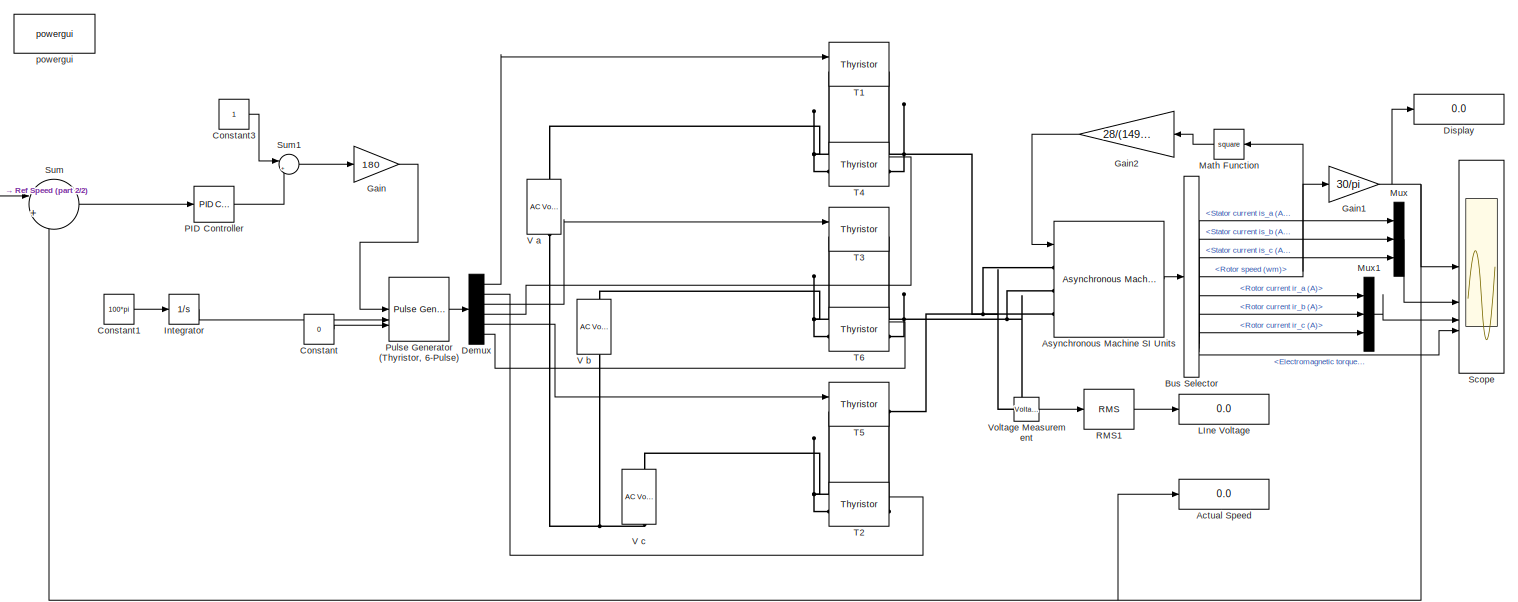
[diagram: root canvas - part 1/2, most of the canvas]
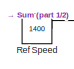
[diagram: root canvas - part 2/2, middle left region]
MODEL slx_1ed2d257d4fe
KIND model
CONFIG AbsTol = auto
CONFIG EnableMultiTasking = off
CONFIG FixedStep = auto
CONFIG MaxStep = 1e-4
CONFIG MinStep = auto
CONFIG RelTol = 1e-3
CONFIG SampleTimeConstraint = Unconstrained
CONFIG SolverName = ode23tb
CONFIG StartTime = 0.0
CONFIG StopTime = 3
BLOCK [Display] Actual Speed
  Decimation = 1
BLOCK [Reference] Asynchronous Machine SI Units  REF=spsAsynchronousMachineSIUnitsLib/Asynchronous Machine
SI Units
  AttributesFormatString = \n
  LibrarySourceBlock = sps_lib/Electrical Machines/Asynchronous Machine\nSI Units
  SourceBlock = spsAsynchronousMachineSIUnitsLib/Asynchronous Machine\nSI Units
  SourceType = Asynchronous Machine
BLOCK [BusSelector] Bus Selector
  OutputSignals = Mechanical.Rotor speed (wm),Stator measurements.Stator current is_a (A),Stator measurements.Stator current is_b (A),Stator measurements.Stator current is_c (A),Rotor measurements.Rotor current ir_a (A),Rotor measurements.Rotor current ir_b (A),Rotor measurements.Rotor current ir_c (A),Mechanical.Electromagnetic torque Te (N*m)
BLOCK [Constant] Constant
  Value = 0
BLOCK [Constant] Constant1
  Value = 100*pi
BLOCK [Constant] Constant3
BLOCK [Demux] Demux
  Outputs = 6
BLOCK [Display] Display
  Decimation = 1
BLOCK [Gain] Gain
  Gain = 180
BLOCK [Gain] Gain1
  Gain = 30/pi
BLOCK [Gain] Gain2
  Gain = 28/(149)^2
  NameLocation = top
BLOCK [Integrator] Integrator
BLOCK [Display] LIne Voltage
  Decimation = 1
BLOCK [Math] Math Function
  NameLocation = top
  Operator = square
  SignedPower = on
BLOCK [Mux] Mux
  DisplayOption = bar
  Inputs = 3
BLOCK [Mux] Mux1
  DisplayOption = bar
  Inputs = 3
BLOCK [Reference] PID Controller  REF=slpidlib/PID Controller
  LibrarySourceBlock = simulink/Continuous/PID Controller
  SourceBlock = slpidlib/PID Controller
  SourceType = PID 1dof
BLOCK [Reference] Pulse Generator (Thyristor, 6-Pulse)  REF=spsPulseGeneratorThyristor6PulseLib/Pulse Generator
(Thyristor, 6-Pulse)
  LibrarySourceBlock = sps_lib/Power Electronics/Power Electronics Control/Pulse Generator\n(Thyristor, 6-Pulse)
  SourceBlock = spsPulseGeneratorThyristor6PulseLib/Pulse Generator\n(Thyristor, 6-Pulse)
  SourceType = Pulse Generator (Thyristor)
BLOCK [Reference] RMS1  REF=spsRMSLib/RMS
  LibrarySourceBlock = sps_lib/Sensors and Measurements/RMS
  SourceBlock = spsRMSLib/RMS
  SourceType = RMS
BLOCK [Constant] Ref Speed
  Value = 1400
BLOCK [Scope] Scope
  Floating = off
  NumInputPorts = 4
  ScopeSpecificationString = Simulink.scopes.TimeScopeBlockCfg('CurrentConfiguration', extmgr.ConfigurationSet(extmgr.Configuration('Core','General UI',true),extmgr.Configuration('Core','Source UI',true),extmgr.Configuration('Sources','WiredSimulink',true,'DataLoggingSaveFormat','Array','DataLoggingDecimation','1','DataLoggingDecimateData',true),extmgr.Configuration('Visuals','Time Domain',true,'SerializedDisplays',{struct('M...<+4280ch>
BLOCK [Sum] Sum
  Inputs = |+-
BLOCK [Sum] Sum1
  Inputs = |+-
BLOCK [Reference] T1  REF=spsThyristorLib/Thyristor
  LibrarySourceBlock = sps_lib/Power Electronics/Thyristor
  SourceBlock = spsThyristorLib/Thyristor
  SourceType = Thyristor
BLOCK [Reference] T2  REF=spsThyristorLib/Thyristor
  LibrarySourceBlock = sps_lib/Power Electronics/Thyristor
  NameLocation = top
  SourceBlock = spsThyristorLib/Thyristor
  SourceType = Thyristor
BLOCK [Reference] T3  REF=spsThyristorLib/Thyristor
  LibrarySourceBlock = sps_lib/Power Electronics/Thyristor
  SourceBlock = spsThyristorLib/Thyristor
  SourceType = Thyristor
BLOCK [Reference] T4  REF=spsThyristorLib/Thyristor
  LibrarySourceBlock = sps_lib/Power Electronics/Thyristor
  NameLocation = top
  SourceBlock = spsThyristorLib/Thyristor
  SourceType = Thyristor
BLOCK [Reference] T5  REF=spsThyristorLib/Thyristor
  LibrarySourceBlock = sps_lib/Power Electronics/Thyristor
  SourceBlock = spsThyristorLib/Thyristor
  SourceType = Thyristor
BLOCK [Reference] T6  REF=spsThyristorLib/Thyristor
  LibrarySourceBlock = sps_lib/Power Electronics/Thyristor
  NameLocation = top
  SourceBlock = spsThyristorLib/Thyristor
  SourceType = Thyristor
BLOCK [Reference] V a  REF=spsACVoltageSourceLib/AC Voltage Source
  LibrarySourceBlock = sps_lib/Sources/AC Voltage Source
  SourceBlock = spsACVoltageSourceLib/AC Voltage Source
  SourceType = AC Voltage Source
BLOCK [Reference] V b  REF=spsACVoltageSourceLib/AC Voltage Source
  LibrarySourceBlock = sps_lib/Sources/AC Voltage Source
  SourceBlock = spsACVoltageSourceLib/AC Voltage Source
  SourceType = AC Voltage Source
BLOCK [Reference] V c  REF=spsACVoltageSourceLib/AC Voltage Source
  LibrarySourceBlock = sps_lib/Sources/AC Voltage Source
  SourceBlock = spsACVoltageSourceLib/AC Voltage Source
  SourceType = AC Voltage Source
BLOCK [Reference] Voltage Measurement  REF=spsVoltageMeasurementLib/Voltage Measurement
  LibrarySourceBlock = sps_lib/Sensors and Measurements/Voltage Measurement
  SourceBlock = spsVoltageMeasurementLib/Voltage Measurement
  SourceType = Voltage Measurement
  UserDataPersistent = on
BLOCK [Reference] powergui  REF=sps_lib/powergui
  LibrarySourceBlock = sps_lib/powergui
  Priority = 1
  SourceBlock = sps_lib/powergui
  SourceType = PSB option menu block
LINE Asynchronous Machine SI Units:1 -> Bus Selector:1
NET Bus Selector:1 -> Gain1:1, Math Function:1
LINE Bus Selector:2 -> Mux:1
LINE Bus Selector:3 -> Mux:2
LINE Bus Selector:4 -> Mux:3
LINE Bus Selector:5 -> Mux1:1
LINE Bus Selector:6 -> Mux1:2
LINE Bus Selector:7 -> Mux1:3
LINE Bus Selector:8 -> Scope:4
LINE Constant1:1 -> Integrator:1
LINE Constant3:1 -> Sum1:1
LINE Constant:1 -> Pulse Generator (Thyristor, 6-Pulse):3
LINE Demux:1 -> T1:1
LINE Demux:2 -> T2:1
LINE Demux:3 -> T3:1
LINE Demux:4 -> T4:1
LINE Demux:5 -> T5:1
LINE Demux:6 -> T6:1
NET Gain1:1 -> Actual Speed:1, Display:1, Scope:1, Sum:2
LINE Gain2:1 -> Asynchronous Machine SI Units:1
LINE Gain:1 -> Pulse Generator (Thyristor, 6-Pulse):1
LINE Integrator:1 -> Pulse Generator (Thyristor, 6-Pulse):2
LINE Math Function:1 -> Gain2:1
LINE Mux1:1 -> Scope:3
LINE Mux:1 -> Scope:2
LINE PID Controller:1 -> Sum1:2
LINE Pulse Generator (Thyristor, 6-Pulse):1 -> Demux:1
LINE RMS1:1 -> LIne Voltage:1
LINE Ref Speed:1 -> Sum:1
LINE Sum1:1 -> Gain:1
LINE Sum:1 -> PID Controller:1
LINE Voltage Measurement:1 -> RMS1:1
PNET net1: Asynchronous Machine SI Units:LConn1 -- T1:RConn1 -- T4:LConn1 -- Voltage Measurement:LConn1
PNET net2: Asynchronous Machine SI Units:LConn2 -- T3:RConn1 -- T6:LConn1 -- Voltage Measurement:LConn2
PNET net3: Asynchronous Machine SI Units:LConn3 -- T2:LConn1 -- T5:RConn1
PNET net4: T1:LConn1 -- T4:RConn1 -- V a:RConn1
PNET net5: T2:RConn1 -- T5:LConn1 -- V c:RConn1
PNET net6: T3:LConn1 -- T6:RConn1 -- V b:RConn1
PNET net7: V a:LConn1 -- V b:LConn1 -- V c:LConn1
note: NET lines group one-source signal fan-out (src -> all destinations, sorted); 1:1 wires keep LINE; PNET lines group multi-terminal physical nets as a canonical sorted terminal list (undirected conserving connections); 2-terminal nets keep the pairwise PLINE form
